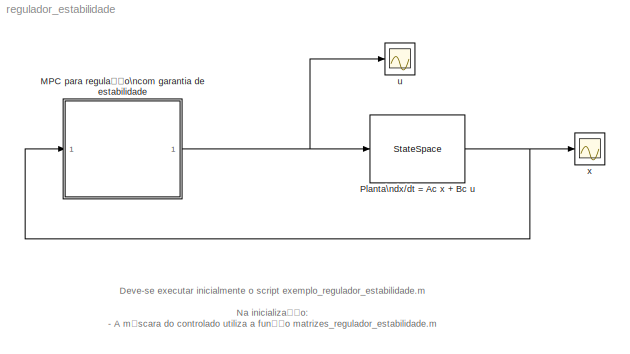
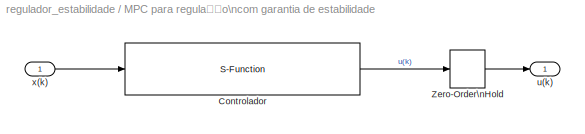
MODEL regulador_estabilidade
KIND model
CONFIG StartFcn = clc
BLOCK [SubSystem] MPC para regulação\ncom garantia de estabilidade
  FunctionWithSeparateData = off
  MaskCallbackString = |||||||
  MaskEnableString = on,on,on,on,on,on,on,on
  MaskHideContents = off
  MaskIconFrame = on
  MaskIconOpaque = on
  MaskIconRotate = none
  MaskIconUnits = autoscale
  MaskInitialization = [Phiu,Hn,Hqp,Aqp,Aeq] = matrizes_regulador_estabilidade(A,B,N,Q,R);\nn = size(A,1);\np = size(B,2);\numin = ulim(:,1);\numax = ulim(:,2);\nxmin = xlim(:,1);\nxmax = xlim(:,2);
  MaskPortRotate = default
  MaskPromptString = Matriz de pesos dos estados Q (n x n)|Matriz de pesos dos controle (R) (p x p)|Horizonte de Predição (N)|Matriz A (n x n)|Matriz B (n x p)|[umin, umax] (p x 2)|[xmin, xmax] (n x 2)|Periodo de amostragem
  MaskStyleString = edit,edit,edit,edit,edit,edit,edit,edit
  MaskToolTipString = on,on,on,on,on,on,on,on
  MaskTunableValueString = on,on,on,on,on,on,on,on
  MaskValueString = Q|R|10|A|B|[-0.2 0.2]|[-2 2;-2 2]|T
  MaskVariables = Q=@1;R=@2;N=@3;A=@4;B=@5;ulim=@6;xlim=@7;T=@8;
  MaskVisibilityString = on,on,on,on,on,on,on,on
  MinAlgLoopOccurrences = off
  Opaque = off
  Ports = [1, 1]
  PropExecContextOutsideSubsystem = off
  RTWSystemCode = Auto
  RequestExecContextInheritance = off
  SID = 48
BLOCK [S-Function] MPC para regulação\ncom garantia de estabilidade/Controlador
  EnableBusSupport = off
  FunctionName = mpc_regulador_estabilidade
  Parameters = Phiu,Hn,Hqp,Aqp,Aeq,umax,umin,xmax,xmin,p,n,N,T
  Ports = [1, 1]
  SID = 52
BLOCK [ZeroOrderHold] MPC para regulação\ncom garantia de estabilidade/Zero-Order\nHold
  SID = 56
  SampleTime = T
BLOCK [Outport] MPC para regulação\ncom garantia de estabilidade/u(k)
  IconDisplay = Port number
  SID = 57
BLOCK [Inport] MPC para regulação\ncom garantia de estabilidade/x(k)
  IconDisplay = Port number
  SID = 50
BLOCK [StateSpace] Planta\ndx//dt = Ac x + Bc u 
  A = Ac
  B = Bc
  C = eye(size(A,1),size(A,1))
  D = zeros(size(A,1),size(B,2))
  SID = 59
  X0 = [1;0]
BLOCK [Scope] u
  Floating = off
  LimitDataPoints = off
  NumInputPorts = 1
  Ports = [1]
  SID = 68
  SaveName = y
  ShowLegends = off
  TimeRange = 12
  YMax = 0.5
  YMin = -2
BLOCK [Scope] x
  Floating = off
  LimitDataPoints = off
  NumInputPorts = 1
  Ports = [1]
  SID = 66
  SaveName = y6
  ShowLegends = off
  TimeRange = 12
  YMax = 2.5
  YMin = -1
ANNOTATION (root): Deve-se executar inicialmente o script exemplo_regulador_estabilidade.m\n\nNa inicialização:\n- A máscara do controlado utiliza a função matrizes_regulador_estabilidade.m
LINE MPC para regulação\ncom garantia de estabilidade/Controlador:1 -> MPC para regulação\ncom garantia de estabilidade/Zero-Order\nHold:1
LINE MPC para regulação\ncom garantia de estabilidade/Zero-Order\nHold:1 -> MPC para regulação\ncom garantia de estabilidade/u(k):1
LINE MPC para regulação\ncom garantia de estabilidade/x(k):1 -> MPC para regulação\ncom garantia de estabilidade/Controlador:1
NET MPC para regulação\ncom garantia de estabilidade:1 -> Planta\ndx//dt = Ac x + Bc u :1, u:1
NET Planta\ndx//dt = Ac x + Bc u :1 -> MPC para regulação\ncom garantia de estabilidade:1, x:1
note: NET lines group one-source signal fan-out (src -> all destinations, sorted); 1:1 wires keep LINE
